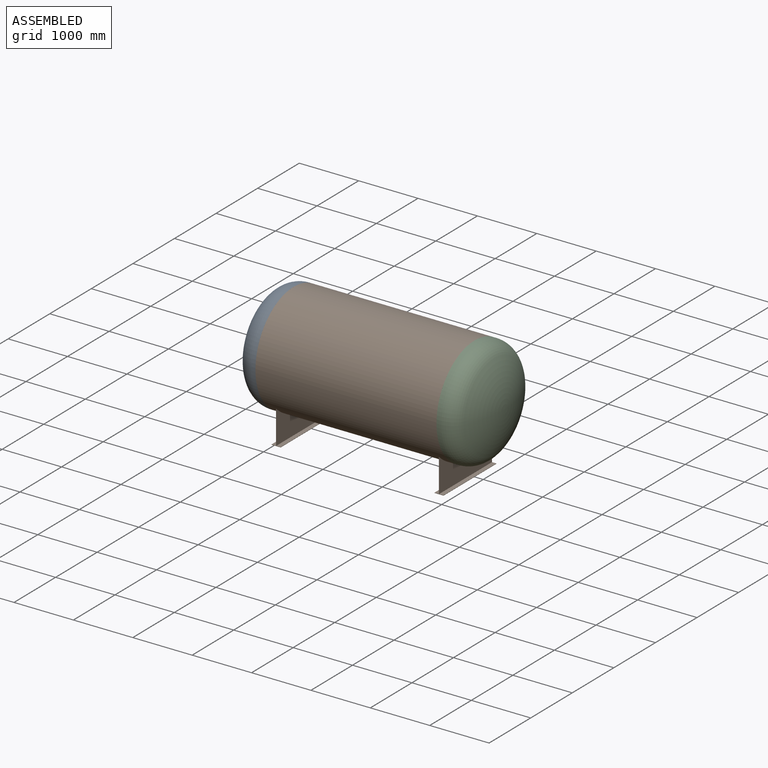
[diagram: assembled view]
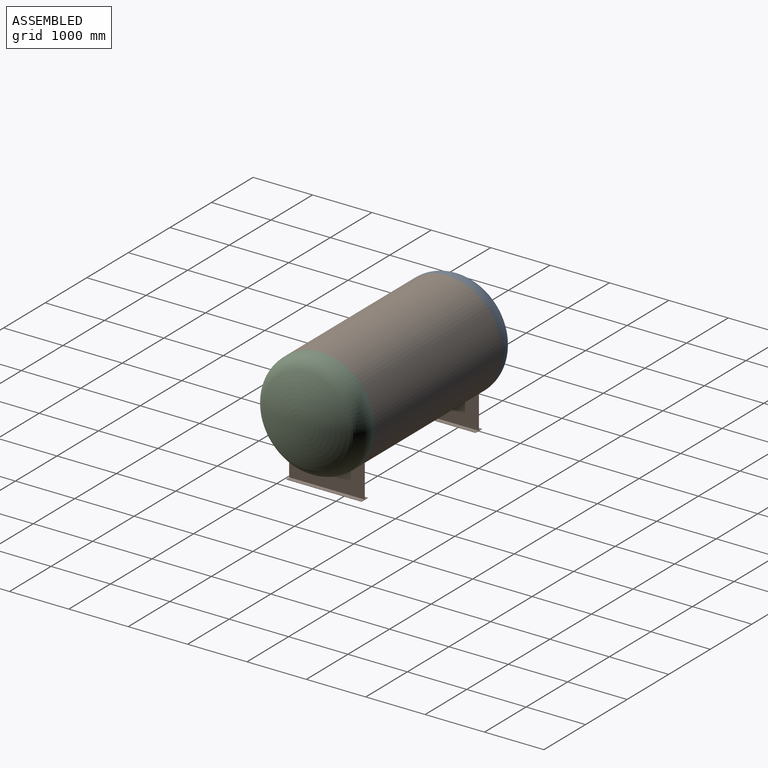
[diagram: assembled view, second angle]
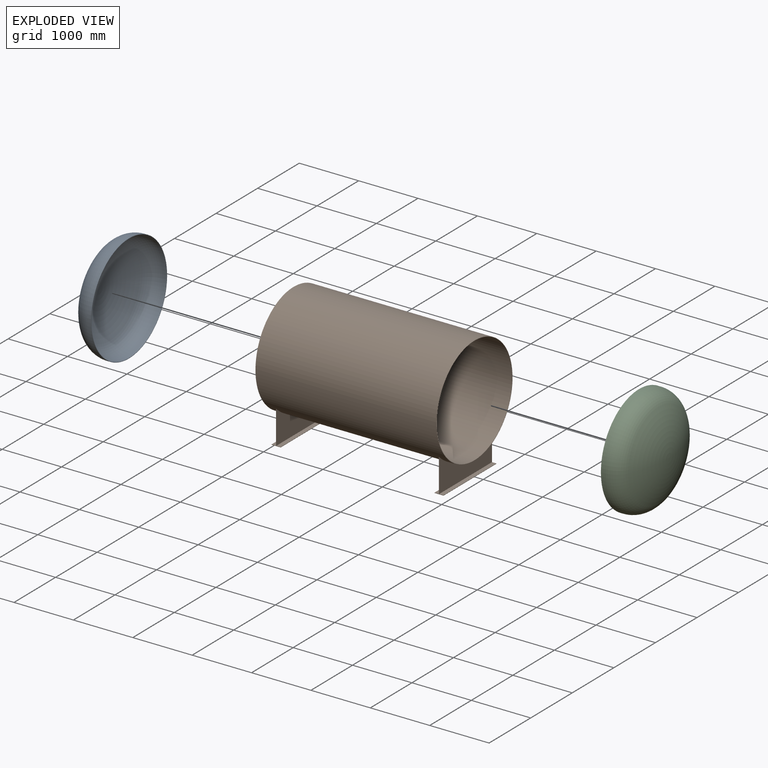
[diagram: exploded view]
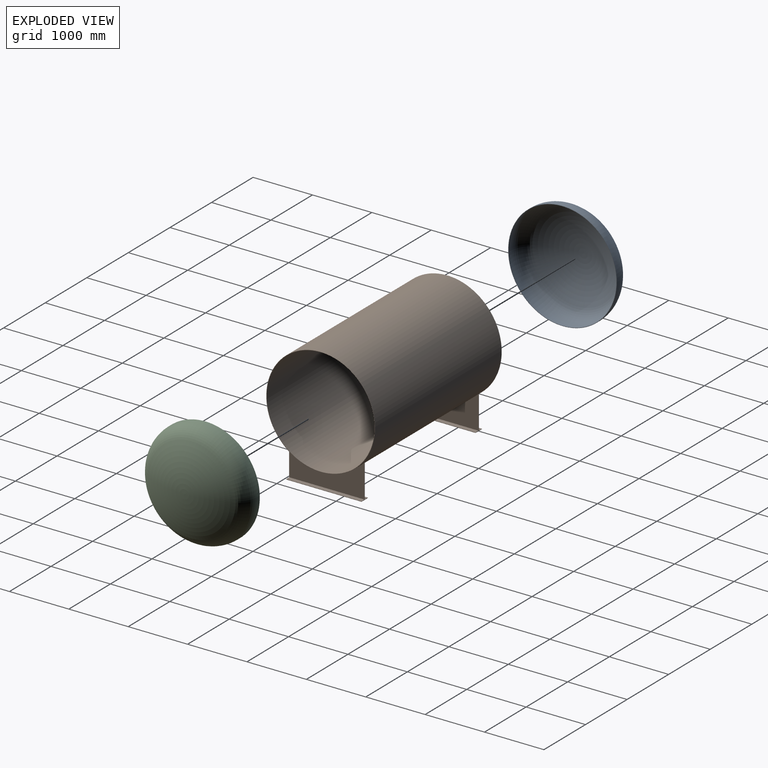
[diagram: exploded view, second angle]
ASSEMBLY  parts=3 mates=2
PART A: 7 faces, bbox 1979.5x681.4x1979.5 mm
  f0: cylinder r=908.05mm len=1816.1mm, axis (0,-1,0), area 289836.7mm2, adj f1,f6
  f1: torus R=598.57mm, axis (0,-1,0), area 1826859.6mm2, adj f0,f2
  f2: sphere r=1647.8mm, area 1801451.2mm2, adj f1
  f3: sphere r=1654.15mm, area 1815362.1mm2, adj f4
  f4: torus R=598.57mm, axis (0,-1,0), area 1875613.8mm2, adj f3,f5
  f5: cylinder r=914.4mm len=1828.8mm, axis (0,-1,0), area 291863.5mm2, adj f4,f6
  f6: plane 1828.8x1828.8mm, normal (0,-1,0), area 36356.3mm2, adj f0,f5
PART B: 22 faces, bbox 3048x1828.8x2140 mm
  f0: cylinder r=908.05mm len=3048mm, axis (-1,0,0), area 17390200.7mm2, adj f2,f3
  f1: cylinder r=914.4mm len=3048mm, axis (-1,0,0), area 17493981.3mm2, adj f2,f3,f4,f5,f6,f7,f13,f14
  f2: plane 1828.8x1828.8mm, normal (1,0,0), area 36356.3mm2, adj f0,f1
  f3: plane 1828.8x1828.8mm, normal (-1,0,0), area 36356.3mm2, adj f0,f1
  f4: plane 567.6x152.4mm, normal (0,-1,0), area 4531.7mm2, adj f1,f6,f7,f8,f9,f10,f11,f12
  f5: plane 567.6x152.4mm, normal (0,1,0), area 4531.7mm2, adj f1,f6,f7,f8,f9,f10,f11,f12
  f6: plane 1270x561.25mm, normal (1,0,0), area 488732.6mm2, adj f1,f4,f5,f12
  f7: plane 1270x561.25mm, normal (-1,0,0), area 488732.6mm2, adj f1,f4,f5,f8
  f8: plane 1270x73.03mm, normal (0,0,1), area 92741.7mm2, adj f4,f5,f7,f10
  f9: plane 1270x6.35mm, normal (1,0,0), area 8064.5mm2, adj f4,f5,f11,f12
  f10: plane 1270x6.35mm, normal (-1,0,0), area 8064.5mm2, adj f4,f5,f8,f11
  f11: plane 1270x152.4mm, normal (0,0,-1), area 193548mm2, adj f4,f5,f9,f10
  f12: plane 1270x73.03mm, normal (0,0,1), area 92741.7mm2, adj f4,f5,f6,f9
  f13: plane 567.6x152.4mm, normal (0,-1,0), area 4531.7mm2, adj f1,f15,f16,f17,f18,f19,f20,f21
  f14: plane 567.6x152.4mm, normal (0,1,0), area 4531.7mm2, adj f1,f15,f16,f17,f18,f19,f20,f21
  f15: plane 1270x561.25mm, normal (1,0,0), area 488732.6mm2, adj f1,f13,f14,f21
  f16: plane 1270x561.25mm, normal (-1,0,0), area 488732.6mm2, adj f1,f13,f14,f17
  f17: plane 1270x73.03mm, normal (0,0,1), area 92741.7mm2, adj f13,f14,f16,f19
  f18: plane 1270x6.35mm, normal (1,0,0), area 8064.5mm2, adj f13,f14,f20,f21
  f19: plane 1270x6.35mm, normal (-1,0,0), area 8064.5mm2, adj f13,f14,f17,f20
  f20: plane 1270x152.4mm, normal (0,0,-1), area 193548mm2, adj f13,f14,f18,f19
  f21: plane 1270x73.03mm, normal (0,0,1), area 92741.7mm2, adj f13,f14,f15,f18
PART C: same geometry as A
PLACE A rot(axis=(0.58,-0.58,0.58),120deg) t=(-2024.18,-243.63,67.72)mm
PLACE B t=(-500.18,-243.63,67.72)mm fixed
PLACE C rot(axis=(-0.58,-0.58,-0.58),120deg) t=(1023.82,-243.63,67.72)mm
MATE fastened A.f0 <-> B.f1  axis (1,0,0) through (-2024.18,-243.63,67.72)mm
MATE fastened C.f0 <-> B.f1  axis (-1,0,0) through (1023.82,-243.63,67.72)mm
